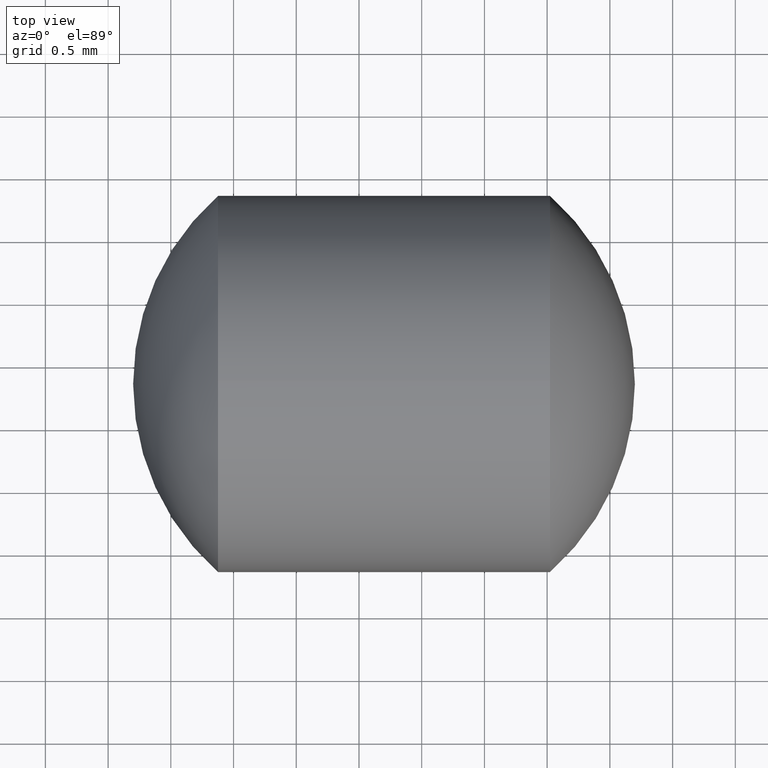
[diagram: clean part render]
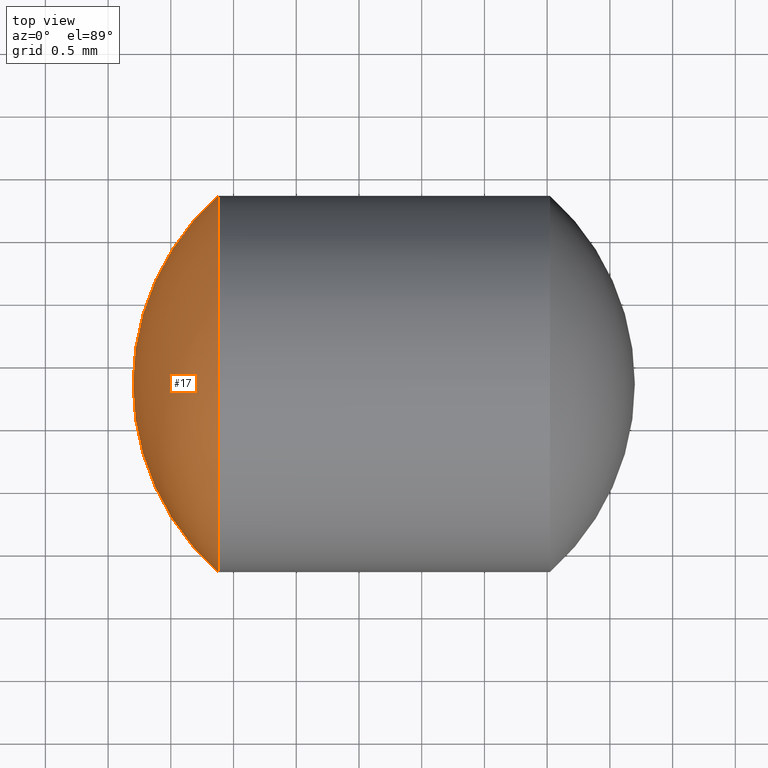
[diagram: same view with one face highlighted and labeled with its STEP entity id]
A machine part, top view. The second image highlights one B-rep face of the part: STEP entity #17.
In plain terms, the highlighted spherical surface has radius 2 mm.
Its self-contained STEP definition (entity closure, byte-faithful):
#6 = DIRECTION ( 'NONE',  ( 0.0000000000000000000, 1.000000000000000000, 1.224646799147353900E-016 ) ) ;
#8 = EDGE_CURVE ( 'NONE', #278, #230, #55, .T. ) ;
#9 = VERTEX_POINT ( 'NONE', #54 ) ;
#17 = ADVANCED_FACE ( 'NONE', ( #291 ), #212, .T. ) ;
#24 = AXIS2_PLACEMENT_3D ( 'NONE', #345, #79, #82 ) ;
#47 = AXIS2_PLACEMENT_3D ( 'NONE', #108, #262, #6 ) ;
#48 = DIRECTION ( 'NONE',  ( 1.000000000000000000, 0.0000000000000000000, 0.0000000000000000000 ) ) ;
#53 = AXIS2_PLACEMENT_3D ( 'NONE', #269, #112, #48 ) ;
#54 = CARTESIAN_POINT ( 'NONE',  ( 228.3764729188125400, 131.8448637497280600, -1.836970198721032200E-016 ) ) ;
#55 = CIRCLE ( 'NONE', #53, 2.000000000000001800 ) ;
#79 = DIRECTION ( 'NONE',  ( -1.000000000000000000, -0.0000000000000000000, -0.0000000000000000000 ) ) ;
#82 = DIRECTION ( 'NONE',  ( 0.0000000000000000000, 0.0000000000000000000, 1.000000000000000000 ) ) ;
#88 = ORIENTED_EDGE ( 'NONE', *, *, #152, .F. ) ;
#108 = CARTESIAN_POINT ( 'NONE',  ( 229.6993485743448400, 133.3448637497280600, 0.0000000000000000000 ) ) ;
#111 = AXIS2_PLACEMENT_3D ( 'NONE', #329, #120, #172 ) ;
#112 = DIRECTION ( 'NONE',  ( -0.0000000000000000000, 0.0000000000000000000, 1.000000000000000000 ) ) ;
#120 = DIRECTION ( 'NONE',  ( -1.000000000000000000, -0.0000000000000000000, -0.0000000000000000000 ) ) ;
#127 = CARTESIAN_POINT ( 'NONE',  ( 229.6993485743448400, 133.3448637497280600, 0.0000000000000000000 ) ) ;
#135 = VERTEX_POINT ( 'NONE', #326 ) ;
#136 = EDGE_LOOP ( 'NONE', ( #88, #159, #154, #151 ) ) ;
#141 = CIRCLE ( 'NONE', #47, 2.000000000000001800 ) ;
#151 = ORIENTED_EDGE ( 'NONE', *, *, #8, .T. ) ;
#152 = EDGE_CURVE ( 'NONE', #9, #230, #141, .T. ) ;
#154 = ORIENTED_EDGE ( 'NONE', *, *, #191, .T. ) ;
#159 = ORIENTED_EDGE ( 'NONE', *, *, #300, .T. ) ;
#160 = CARTESIAN_POINT ( 'NONE',  ( 227.6993485743448400, 133.3448637497280600, 0.0000000000000000000 ) ) ;
#172 = DIRECTION ( 'NONE',  ( 0.0000000000000000000, 0.0000000000000000000, 1.000000000000000000 ) ) ;
#191 = EDGE_CURVE ( 'NONE', #135, #278, #276, .T. ) ;
#212 = SPHERICAL_SURFACE ( 'NONE', #325, 2.000000000000002700 ) ;
#220 = CARTESIAN_POINT ( 'NONE',  ( 228.3764729188125400, 134.8448637497280600, 0.0000000000000000000 ) ) ;
#227 = DIRECTION ( 'NONE',  ( 0.0000000000000000000, 1.000000000000000000, 0.0000000000000000000 ) ) ;
#230 = VERTEX_POINT ( 'NONE', #160 ) ;
#257 = DIRECTION ( 'NONE',  ( -0.0000000000000000000, 0.0000000000000000000, -1.000000000000000000 ) ) ;
#262 = DIRECTION ( 'NONE',  ( 0.0000000000000000000, 1.224646799147353200E-016, -1.000000000000000000 ) ) ;
#269 = CARTESIAN_POINT ( 'NONE',  ( 229.6993485743448400, 133.3448637497280600, 0.0000000000000000000 ) ) ;
#276 = CIRCLE ( 'NONE', #24, 1.500000000000001300 ) ;
#278 = VERTEX_POINT ( 'NONE', #220 ) ;
#291 = FACE_OUTER_BOUND ( 'NONE', #136, .T. ) ;
#300 = EDGE_CURVE ( 'NONE', #9, #135, #324, .T. ) ;
#324 = CIRCLE ( 'NONE', #111, 1.500000000000001300 ) ;
#325 = AXIS2_PLACEMENT_3D ( 'NONE', #127, #257, #227 ) ;
#326 = CARTESIAN_POINT ( 'NONE',  ( 228.3764729188125400, 133.3448637497280600, 1.500000000000001300 ) ) ;
#329 = CARTESIAN_POINT ( 'NONE',  ( 228.3764729188125400, 133.3448637497280600, 0.0000000000000000000 ) ) ;
#345 = CARTESIAN_POINT ( 'NONE',  ( 228.3764729188125400, 133.3448637497280600, 0.0000000000000000000 ) ) ;